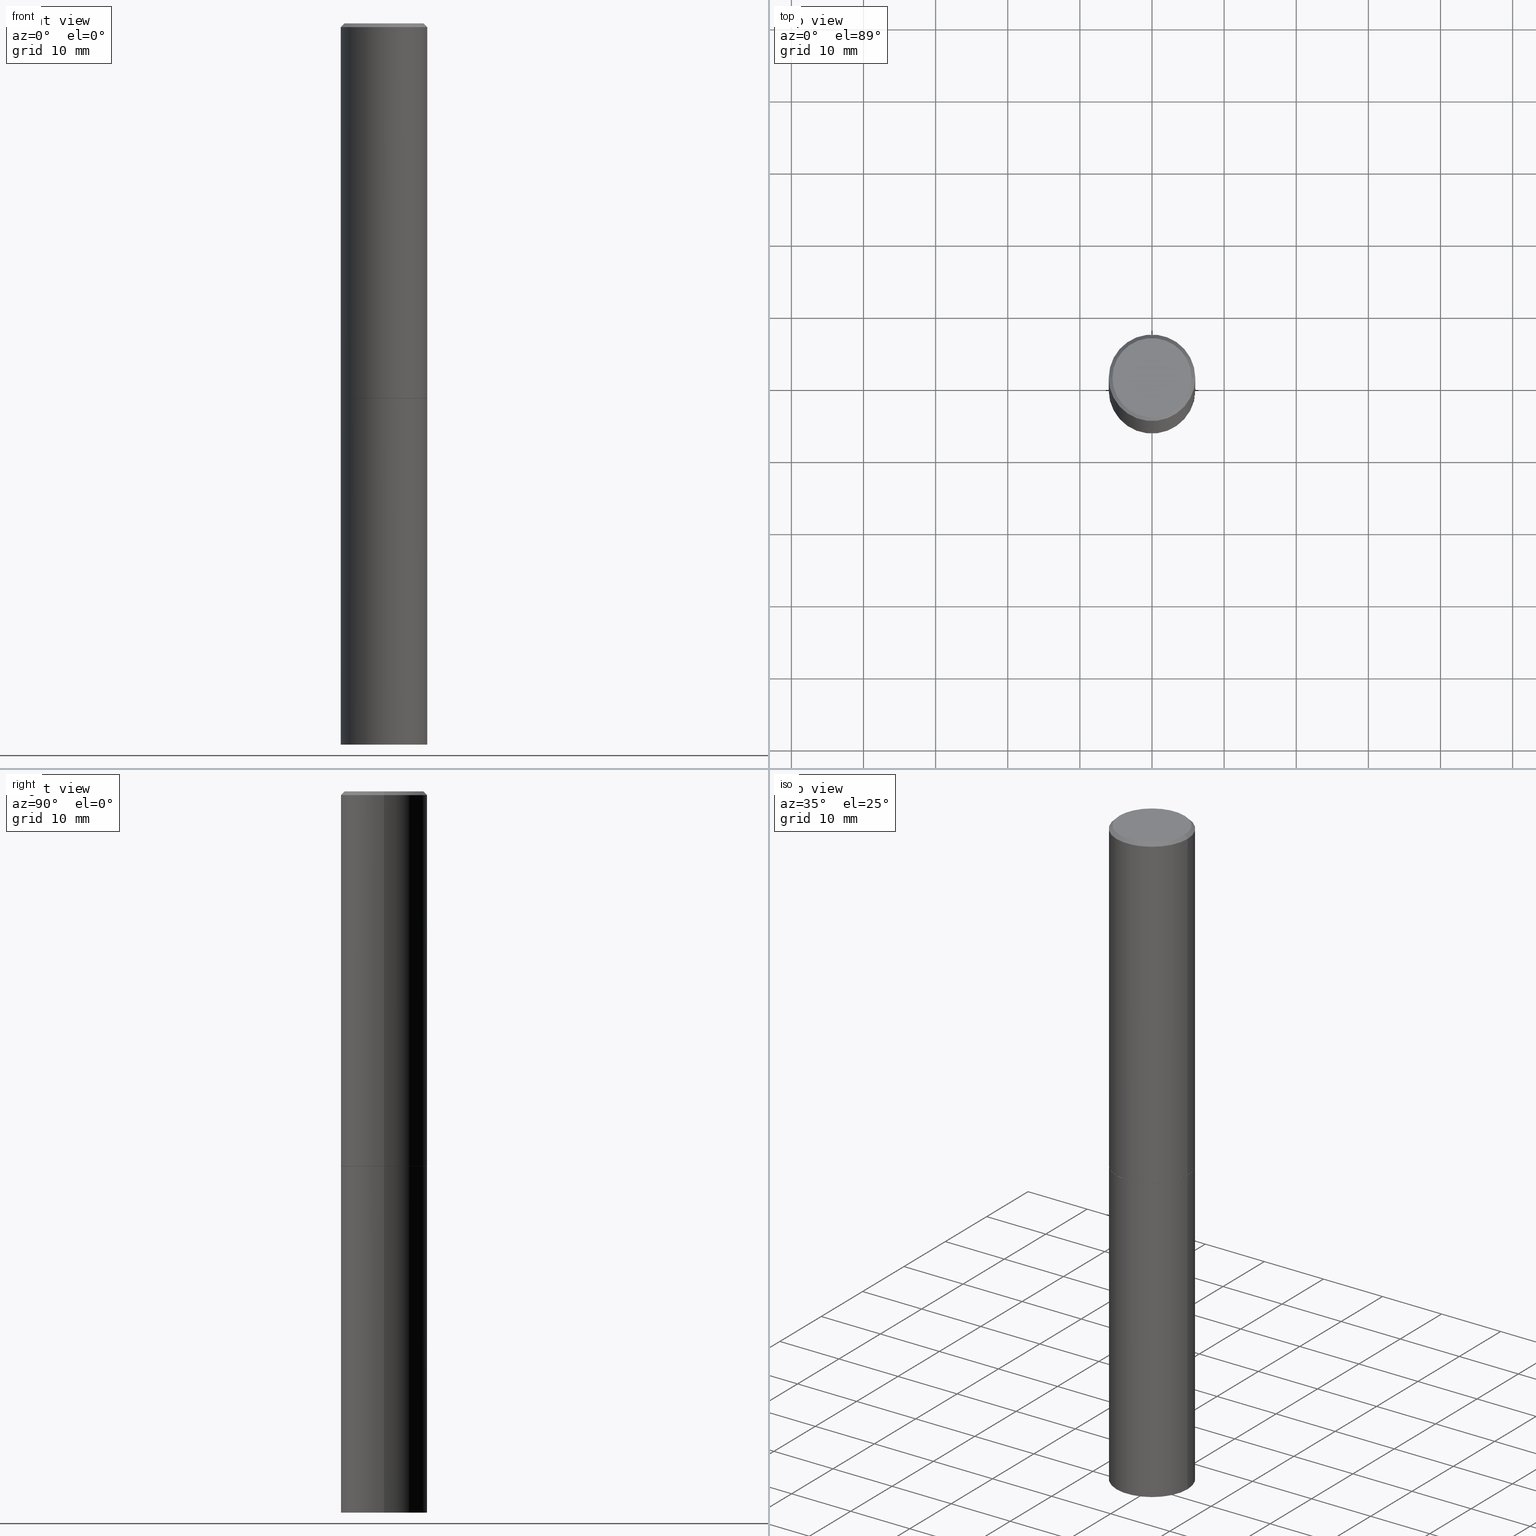
[diagram: canonical four-view strip — front | top / right | iso, engineering-drawing reading convention]
A machine part, canonical four-view strip (front | top / right | iso — engineering-drawing reading convention). The complete STEP part file that produces these views, byte-faithful:
ISO-10303-21;
HEADER;
FILE_DESCRIPTION (( 'STEP AP203' ),
    '1' );
FILE_NAME ('44897.STEP',
    '2024-02-28T08:09:14',
    ( '' ),
    ( '' ),
    'SwSTEP 2.0',
    'SolidWorks 2023',
    '' );
FILE_SCHEMA (( 'CONFIG_CONTROL_DESIGN' ));
ENDSEC;

DATA;
#1 = CARTESIAN_POINT ( 'NONE',  ( 0.000000000000000000, 0.000000000000000000, 0.000000000000000000 ) ) ;
#2 = CIRCLE ( 'NONE', #56, 0.2361999999999997157 ) ;
#3 = CC_DESIGN_SECURITY_CLASSIFICATION ( #134, ( #212 ) ) ;
#4 = PERSON_AND_ORGANIZATION ( #59, #199 ) ;
#5 = CARTESIAN_POINT ( 'NONE',  ( -1.043851414335219820E-46, 1.490343170380447200E-32, 4.268512490100411279E-18 ) ) ;
#6 = CALENDAR_DATE ( 2024, 28, 2 ) ;
#7 = DESIGN_CONTEXT ( 'detailed design', #343, 'design' ) ;
#8 = DIRECTION ( 'NONE',  ( 1.000000000000000000, -6.982962677686266711E-15, 4.876217060660162401E-29 ) ) ;
#9 = DATE_AND_TIME ( #318, #162 ) ;
#10 = AXIS2_PLACEMENT_3D ( 'NONE', #54, #229, #168 ) ;
#11 = ORIENTED_EDGE ( 'NONE', *, *, #263, .T. ) ;
#12 = VECTOR ( 'NONE', #251, 39.37007874015748143 ) ;
#13 = CC_DESIGN_APPROVAL ( #362, ( #40 ) ) ;
#14 = EDGE_LOOP ( 'NONE', ( #296, #83 ) ) ;
#15 = CC_DESIGN_DATE_AND_TIME_ASSIGNMENT ( #298, #128, ( #40 ) ) ;
#16 = CARTESIAN_POINT ( 'NONE',  ( -0.2351999999999999924, -5.471265628023711203E-15, -2.047200000000000575 ) ) ;
#17 = APPLICATION_CONTEXT ( 'configuration controlled 3d designs of mechanical parts and assemblies' ) ;
#18 = DIRECTION ( 'NONE',  ( -2.445468806185136877E-29, 3.491481338843145188E-15, 1.000000000000000000 ) ) ;
#19 = APPROVAL_PERSON_ORGANIZATION ( #37, #127, #183 ) ;
#20 = CARTESIAN_POINT ( 'NONE',  ( 0.2361999999999999933, -8.797136381349184727E-15, -2.047200000000000131 ) ) ;
#21 = ORIENTED_EDGE ( 'NONE', *, *, #268, .F. ) ;
#22 = CARTESIAN_POINT ( 'NONE',  ( 5.006363740022212241E-29, -7.147760596879688202E-15, -2.047200000000000131 ) ) ;
#23 = ORIENTED_EDGE ( 'NONE', *, *, #271, .T. ) ;
#24 = PLANE ( 'NONE',  #348 ) ;
#25 = VECTOR ( 'NONE', #352, 39.37007874015748143 ) ;
#26 = CARTESIAN_POINT ( 'NONE',  ( -0.2161999999999996980, 1.544631344304200000E-15, 4.268512490089730842E-18 ) ) ;
#27 =( LENGTH_UNIT ( ) NAMED_UNIT ( * ) SI_UNIT ( $, .METRE. ) );
#28 = VERTEX_POINT ( 'NONE', #319 ) ;
#29 = CARTESIAN_POINT ( 'NONE',  ( -0.2361999999999997157, 1.579546157692631255E-15, -0.02000000000000005940 ) ) ;
#30 = LOCAL_TIME ( 3, 9, 14.00000000000000000, #344 ) ;
#31 = FACE_OUTER_BOUND ( 'NONE', #172, .T. ) ;
#32 = DIRECTION ( 'NONE',  ( -2.445468806185136597E-29, 3.491481338843145583E-15, 1.000000000000000000 ) ) ;
#33 = ADVANCED_FACE ( 'NONE', ( #71 ), #156, .T. ) ;
#34 = AXIS2_PLACEMENT_3D ( 'NONE', #182, #81, #289 ) ;
#35 = VECTOR ( 'NONE', #147, 39.37007874015748143 ) ;
#36 = CARTESIAN_POINT ( 'NONE',  ( 0.000000000000000000, 0.000000000000000000, 0.000000000000000000 ) ) ;
#37 = PERSON_AND_ORGANIZATION ( #59, #199 ) ;
#38 = DIRECTION ( 'NONE',  ( -1.000000000000000000, 6.982962677686265922E-15, -4.876176775795935793E-29 ) ) ;
#39 = ORIENTED_EDGE ( 'NONE', *, *, #170, .F. ) ;
#40 = PRODUCT_DEFINITION ( 'UNKNOWN', '', #212, #7 ) ;
#41 = AXIS2_PLACEMENT_3D ( 'NONE', #36, #187, #351 ) ;
#42 = EDGE_LOOP ( 'NONE', ( #253, #122 ) ) ;
#43 = DIRECTION ( 'NONE',  ( -1.000000000000000000, 6.982962677686265922E-15, -4.876176775795935793E-29 ) ) ;
#44 = EDGE_LOOP ( 'NONE', ( #111, #290, #206, #270 ) ) ;
#45 = CARTESIAN_POINT ( 'NONE',  ( -1.043851414335219820E-46, 1.490343170380447200E-32, 4.268512490100411279E-18 ) ) ;
#46 = EDGE_CURVE ( 'NONE', #28, #204, #340, .T. ) ;
#47 = DIRECTION ( 'NONE',  ( -2.445468806185136597E-29, 3.491481338843145583E-15, 1.000000000000000000 ) ) ;
#48 = VERTEX_POINT ( 'NONE', #16 ) ;
#49 = CIRCLE ( 'NONE', #234, 0.2361999999999999933 ) ;
#50 = CYLINDRICAL_SURFACE ( 'NONE', #329, 0.2361999999999998545 ) ;
#51 = VERTEX_POINT ( 'NONE', #219 ) ;
#52 = EDGE_LOOP ( 'NONE', ( #98, #163, #358, #167 ) ) ;
#53 = CARTESIAN_POINT ( 'NONE',  ( 0.2361999999999997157, -1.690279253850496996E-15, -0.02000000000000005940 ) ) ;
#54 = CARTESIAN_POINT ( 'NONE',  ( 5.006363740022212801E-29, -7.147760596879689780E-15, -2.047200000000000575 ) ) ;
#55 = CC_DESIGN_PERSON_AND_ORGANIZATION_ASSIGNMENT ( #242, #123, ( #40 ) ) ;
#56 = AXIS2_PLACEMENT_3D ( 'NONE', #77, #222, #247 ) ;
#57 = APPROVAL_PERSON_ORGANIZATION ( #365, #362, #338 ) ;
#58 = DIRECTION ( 'NONE',  ( -2.445468806185136597E-29, 3.491481338843145583E-15, 1.000000000000000000 ) ) ;
#59 = PERSON ( 'UNSPECIFIED', 'UNSPECIFIED', 'UNSPECIFIED', ('UNSPECIFIED'), ('UNSPECIFIED'), ('UNSPECIFIED') ) ;
#60 = DIRECTION ( 'NONE',  ( 1.000000000000000000, -6.982962677686266711E-15, 4.876176775795935793E-29 ) ) ;
#61 = DIMENSIONAL_EXPONENTS ( 1.000000000000000000, 0.000000000000000000, 0.000000000000000000, 0.000000000000000000, 0.000000000000000000, 0.000000000000000000, 0.000000000000000000 ) ;
#62 = APPROVAL_DATE_TIME ( #313, #362 ) ;
#63 = VECTOR ( 'NONE', #141, 39.37007874015748143 ) ;
#64 = DIRECTION ( 'NONE',  ( -2.445468806185136597E-29, 3.491481338843145583E-15, 1.000000000000000000 ) ) ;
#65 = DATE_AND_TIME ( #121, #336 ) ;
#66 = SHAPE_DEFINITION_REPRESENTATION ( #218, #361 ) ;
#67 = VECTOR ( 'NONE', #76, 39.37007874015748143 ) ;
#68 = CONICAL_SURFACE ( 'NONE', #341, 0.2351999999999999924, 0.7853981633972946241 ) ;
#69 = DIRECTION ( 'NONE',  ( 2.438088387897960049E-29, -3.491481338843145188E-15, -1.000000000000000000 ) ) ;
#70 = EDGE_CURVE ( 'NONE', #286, #195, #107, .T. ) ;
#71 = FACE_OUTER_BOUND ( 'NONE', #169, .T. ) ;
#72 = ORIENTED_EDGE ( 'NONE', *, *, #46, .F. ) ;
#73 = DIRECTION ( 'NONE',  ( 2.438088387897960049E-29, -3.491481338843145188E-15, -1.000000000000000000 ) ) ;
#74 = ORIENTED_EDGE ( 'NONE', *, *, #196, .F. ) ;
#75 = ADVANCED_FACE ( 'NONE', ( #320 ), #301, .F. ) ;
#76 = DIRECTION ( 'NONE',  ( 0.7071067811864388819, -2.468850131081119129E-15, 0.7071067811866561525 ) ) ;
#77 = CARTESIAN_POINT ( 'NONE',  ( 4.890937612370288047E-31, -6.982962677686311331E-17, -0.02000000000000005940 ) ) ;
#78 = CARTESIAN_POINT ( 'NONE',  ( 0.2351999999999999924, -8.790153418671498713E-15, -2.047200000000000575 ) ) ;
#79 = EDGE_LOOP ( 'NONE', ( #108, #207 ) ) ;
#80 = EDGE_CURVE ( 'NONE', #51, #238, #245, .T. ) ;
#81 = DIRECTION ( 'NONE',  ( -2.445468806185136597E-29, 3.491481338843145583E-15, 1.000000000000000000 ) ) ;
#82 = CYLINDRICAL_SURFACE ( 'NONE', #88, 0.2361999999999999933 ) ;
#83 = ORIENTED_EDGE ( 'NONE', *, *, #46, .T. ) ;
#84 = DIRECTION ( 'NONE',  ( -1.000000000000000000, 6.982962677686266711E-15, 0.000000000000000000 ) ) ;
#85 = COORDINATED_UNIVERSAL_TIME_OFFSET ( 5, 0, .BEHIND. ) ;
#86 = MANIFOLD_SOLID_BREP ( 'Body-Move/Copy2[2]', #125 ) ;
#87 = CARTESIAN_POINT ( 'NONE',  ( -0.2361999999999999933, 1.678301941865356591E-15, -1.161852468318208757E-29 ) ) ;
#88 = AXIS2_PLACEMENT_3D ( 'NONE', #356, #133, #303 ) ;
#89 = CIRCLE ( 'NONE', #145, 0.2361999999999999933 ) ;
#90 = PERSON_AND_ORGANIZATION_ROLE ( 'creator' ) ;
#91 = COORDINATED_UNIVERSAL_TIME_OFFSET ( 5, 0, .BEHIND. ) ;
#92 = PLANE ( 'NONE',  #306 ) ;
#93 = AXIS2_PLACEMENT_3D ( 'NONE', #246, #69, #38 ) ;
#94 = CONICAL_SURFACE ( 'NONE', #288, 0.2361999999999997157, 0.7853981633974473908 ) ;
#95 = ORIENTED_EDGE ( 'NONE', *, *, #80, .F. ) ;
#96 = EDGE_CURVE ( 'NONE', #51, #188, #49, .T. ) ;
#97 = CALENDAR_DATE ( 2024, 28, 2 ) ;
#98 = ORIENTED_EDGE ( 'NONE', *, *, #228, .F. ) ;
#99 = CARTESIAN_POINT ( 'NONE',  ( 9.627810689950883669E-29, -1.374596203102546341E-14, -3.937000000000000277 ) ) ;
#100 = AXIS2_PLACEMENT_3D ( 'NONE', #198, #308, #164 ) ;
#101 = EDGE_LOOP ( 'NONE', ( #23, #138, #221, #39 ) ) ;
#102 =( GEOMETRIC_REPRESENTATION_CONTEXT ( 3 ) GLOBAL_UNCERTAINTY_ASSIGNED_CONTEXT ( ( #252 ) ) GLOBAL_UNIT_ASSIGNED_CONTEXT ( ( #264, #233, #211 ) ) REPRESENTATION_CONTEXT ( 'NONE', 'WORKASPACE' ) );
#103 = FACE_OUTER_BOUND ( 'NONE', #152, .T. ) ;
#104 = PRODUCT ( '44897', '44897', '', ( #342 ) ) ;
#105 = DIRECTION ( 'NONE',  ( 1.000000000000000000, -6.982962677686266711E-15, 4.876176775795935793E-29 ) ) ;
#106 = DIRECTION ( 'NONE',  ( -2.445468806185136597E-29, 3.491481338843145583E-15, 1.000000000000000000 ) ) ;
#107 = CIRCLE ( 'NONE', #197, 0.2361999999999997157 ) ;
#108 = ORIENTED_EDGE ( 'NONE', *, *, #271, .F. ) ;
#109 = LINE ( 'NONE', #325, #175 ) ;
#110 = CARTESIAN_POINT ( 'NONE',  ( 9.627810689950883669E-29, -1.374596203102546341E-14, -3.937000000000000277 ) ) ;
#111 = ORIENTED_EDGE ( 'NONE', *, *, #326, .F. ) ;
#112 = ADVANCED_FACE ( 'NONE', ( #220 ), #92, .F. ) ;
#113 = CIRCLE ( 'NONE', #160, 0.2361999999999999933 ) ;
#114 = CC_DESIGN_APPROVAL ( #127, ( #212 ) ) ;
#115 = CARTESIAN_POINT ( 'NONE',  ( 4.890937612370288047E-31, -6.982962677686311331E-17, -0.02000000000000005940 ) ) ;
#116 = FACE_OUTER_BOUND ( 'NONE', #311, .T. ) ;
#117 = CARTESIAN_POINT ( 'NONE',  ( 5.006363740022212801E-29, -7.147760596879689780E-15, -2.047200000000000575 ) ) ;
#118 = AXIS2_PLACEMENT_3D ( 'NONE', #277, #73, #43 ) ;
#119 = AXIS2_PLACEMENT_3D ( 'NONE', #291, #295, #60 ) ;
#120 = DIRECTION ( 'NONE',  ( 1.000000000000000000, -6.982962677686265133E-15, 0.000000000000000000 ) ) ;
#121 = CALENDAR_DATE ( 2024, 28, 2 ) ;
#122 = ORIENTED_EDGE ( 'NONE', *, *, #210, .F. ) ;
#123 = PERSON_AND_ORGANIZATION_ROLE ( 'creator' ) ;
#124 = ORIENTED_EDGE ( 'NONE', *, *, #235, .T. ) ;
#125 = CLOSED_SHELL ( 'NONE', ( #232, #223, #274, #279, #292, #333, #208, #75 ) ) ;
#126 = VERTEX_POINT ( 'NONE', #158 ) ;
#127 = APPROVAL ( #190, 'UNSPECIFIED' ) ;
#128 = DATE_TIME_ROLE ( 'creation_date' ) ;
#129 = ORIENTED_EDGE ( 'NONE', *, *, #191, .T. ) ;
#130 = APPROVAL_STATUS ( 'not_yet_approved' ) ;
#131 = PLANE ( 'NONE',  #93 ) ;
#132 = CLOSED_SHELL ( 'NONE', ( #33, #137, #112, #259 ) ) ;
#133 = DIRECTION ( 'NONE',  ( -2.445468806185136597E-29, 3.491481338843145583E-15, 1.000000000000000000 ) ) ;
#134 = SECURITY_CLASSIFICATION ( '', '', #272 ) ;
#135 = CARTESIAN_POINT ( 'NONE',  ( -0.2361999999999999933, -8.768559372087217836E-15, -2.047200000000000131 ) ) ;
#136 = CARTESIAN_POINT ( 'NONE',  ( 5.006363740022212801E-29, -7.147760596879689780E-15, -2.047200000000000575 ) ) ;
#137 = ADVANCED_FACE ( 'NONE', ( #192 ), #131, .T. ) ;
#138 = ORIENTED_EDGE ( 'NONE', *, *, #228, .T. ) ;
#139 = CARTESIAN_POINT ( 'NONE',  ( -0.2361999999999999933, -8.768559372087217836E-15, -3.937000000000000277 ) ) ;
#140 = CONICAL_SURFACE ( 'NONE', #307, 0.2361999999999997157, 0.7853981633974473908 ) ;
#141 = DIRECTION ( 'NONE',  ( 0.7071067811865469066, -7.319954787623254468E-15, -0.7071067811865482389 ) ) ;
#142 = LENGTH_MEASURE_WITH_UNIT ( LENGTH_MEASURE( 0.02539999999999999897 ), #27 );
#143 = CC_DESIGN_PERSON_AND_ORGANIZATION_ASSIGNMENT ( #4, #90, ( #212 ) ) ;
#144 = ORIENTED_EDGE ( 'NONE', *, *, #305, .T. ) ;
#145 = AXIS2_PLACEMENT_3D ( 'NONE', #178, #64, #120 ) ;
#146 = EDGE_CURVE ( 'NONE', #48, #324, #276, .T. ) ;
#147 = DIRECTION ( 'NONE',  ( -2.445468806185136877E-29, 3.491481338843145188E-15, 1.000000000000000000 ) ) ;
#148 = CARTESIAN_POINT ( 'NONE',  ( 4.890937612370288047E-31, -6.982962677686311331E-17, -0.02000000000000005940 ) ) ;
#149 = COORDINATED_UNIVERSAL_TIME_OFFSET ( 5, 0, .BEHIND. ) ;
#150 = DIRECTION ( 'NONE',  ( 1.000000000000000000, -6.982962677686265133E-15, 0.000000000000000000 ) ) ;
#151 = COORDINATED_UNIVERSAL_TIME_OFFSET ( 5, 0, .BEHIND. ) ;
#152 = EDGE_LOOP ( 'NONE', ( #129, #184, #217, #21 ) ) ;
#153 = CC_DESIGN_PERSON_AND_ORGANIZATION_ASSIGNMENT ( #269, #186, ( #134 ) ) ;
#154 = VERTEX_POINT ( 'NONE', #161 ) ;
#155 = CIRCLE ( 'NONE', #100, 0.2351999999999999924 ) ;
#156 = CYLINDRICAL_SURFACE ( 'NONE', #41, 0.2361999999999999933 ) ;
#157 = EDGE_CURVE ( 'NONE', #126, #286, #109, .T. ) ;
#158 = CARTESIAN_POINT ( 'NONE',  ( -0.2362000000000000210, -1.928747429293494697E-15, -2.046200000000000241 ) ) ;
#159 = DIRECTION ( 'NONE',  ( 1.000000000000000000, -6.982962677686266711E-15, 4.876217060660162401E-29 ) ) ;
#160 = AXIS2_PLACEMENT_3D ( 'NONE', #22, #224, #360 ) ;
#161 = CARTESIAN_POINT ( 'NONE',  ( 0.2362000000000000210, -8.793644900010341720E-15, -2.046200000000000241 ) ) ;
#162 = LOCAL_TIME ( 3, 9, 14.00000000000000000, #149 ) ;
#163 = ORIENTED_EDGE ( 'NONE', *, *, #146, .T. ) ;
#164 = DIRECTION ( 'NONE',  ( 1.000000000000000000, -6.982962677686264344E-15, 0.000000000000000000 ) ) ;
#165 = ORIENTED_EDGE ( 'NONE', *, *, #196, .T. ) ;
#166 = LINE ( 'NONE', #194, #314 ) ;
#167 = ORIENTED_EDGE ( 'NONE', *, *, #283, .F. ) ;
#168 = DIRECTION ( 'NONE',  ( 1.000000000000000000, -6.982962677686264344E-15, 0.000000000000000000 ) ) ;
#169 = EDGE_LOOP ( 'NONE', ( #202, #354, #300, #95 ) ) ;
#170 = EDGE_CURVE ( 'NONE', #324, #154, #285, .T. ) ;
#171 = LOCAL_TIME ( 3, 9, 14.00000000000000000, #151 ) ;
#172 = EDGE_LOOP ( 'NONE', ( #273, #328, #165, #345 ) ) ;
#173 = PERSON_AND_ORGANIZATION ( #59, #199 ) ;
#174 = CONICAL_SURFACE ( 'NONE', #10, 0.2351999999999999924, 0.7853981633972946241 ) ;
#175 = VECTOR ( 'NONE', #18, 39.37007874015748143 ) ;
#176 = CIRCLE ( 'NONE', #230, 0.2362000000000000210 ) ;
#177 = EDGE_CURVE ( 'NONE', #204, #28, #189, .T. ) ;
#178 = CARTESIAN_POINT ( 'NONE',  ( 5.006363740022212241E-29, -7.147760596879688202E-15, -2.047200000000000131 ) ) ;
#179 = DIRECTION ( 'NONE',  ( 2.445468806185136597E-29, -3.491481338843145583E-15, -1.000000000000000000 ) ) ;
#180 = APPROVAL_DATE_TIME ( #65, #127 ) ;
#181 = APPROVAL_PERSON_ORGANIZATION ( #214, #203, #316 ) ;
#182 = CARTESIAN_POINT ( 'NONE',  ( 5.006363740022212801E-29, -7.147760596879689780E-15, -2.047200000000000575 ) ) ;
#183 = APPROVAL_ROLE ( '' ) ;
#184 = ORIENTED_EDGE ( 'NONE', *, *, #157, .T. ) ;
#185 = EDGE_CURVE ( 'NONE', #238, #243, #113, .T. ) ;
#186 = PERSON_AND_ORGANIZATION_ROLE ( 'classification_officer' ) ;
#187 = DIRECTION ( 'NONE',  ( -2.445468806185136597E-29, 3.491481338843145583E-15, 1.000000000000000000 ) ) ;
#188 = VERTEX_POINT ( 'NONE', #139 ) ;
#189 = CIRCLE ( 'NONE', #281, 0.2161999999999996980 ) ;
#190 = APPROVAL_STATUS ( 'not_yet_approved' ) ;
#191 = EDGE_CURVE ( 'NONE', #154, #126, #216, .T. ) ;
#192 = FACE_OUTER_BOUND ( 'NONE', #42, .T. ) ;
#193 = CARTESIAN_POINT ( 'NONE',  ( 4.890937612370288047E-31, -6.982962677686311331E-17, -0.02000000000000005940 ) ) ;
#194 = CARTESIAN_POINT ( 'NONE',  ( 0.2361999999999998545, -1.649375784469495145E-15, 1.151752954442999387E-29 ) ) ;
#195 = VERTEX_POINT ( 'NONE', #327 ) ;
#196 = EDGE_CURVE ( 'NONE', #204, #286, #256, .T. ) ;
#197 = AXIS2_PLACEMENT_3D ( 'NONE', #193, #347, #275 ) ;
#198 = CARTESIAN_POINT ( 'NONE',  ( 5.006363740022212801E-29, -7.147760596879689780E-15, -2.047200000000000575 ) ) ;
#199 = ORGANIZATION ( 'UNSPECIFIED', 'UNSPECIFIED', '' ) ;
#200 = DIRECTION ( 'NONE',  ( -2.445468806185136597E-29, 3.491481338843145583E-15, 1.000000000000000000 ) ) ;
#201 = DIRECTION ( 'NONE',  ( -2.445468806185136597E-29, 3.491481338843145583E-15, 1.000000000000000000 ) ) ;
#202 = ORIENTED_EDGE ( 'NONE', *, *, #96, .T. ) ;
#203 = APPROVAL ( #130, 'UNSPECIFIED' ) ;
#204 = VERTEX_POINT ( 'NONE', #26 ) ;
#205 = CYLINDRICAL_SURFACE ( 'NONE', #119, 0.2361999999999998545 ) ;
#206 = ORIENTED_EDGE ( 'NONE', *, *, #80, .T. ) ;
#207 = ORIENTED_EDGE ( 'NONE', *, *, #146, .F. ) ;
#208 = ADVANCED_FACE ( 'NONE', ( #334 ), #24, .F. ) ;
#209 = CALENDAR_DATE ( 2024, 28, 2 ) ;
#210 = EDGE_CURVE ( 'NONE', #188, #51, #322, .T. ) ;
#211 =( NAMED_UNIT ( * ) SI_UNIT ( $, .STERADIAN. ) SOLID_ANGLE_UNIT ( ) );
#212 = PRODUCT_DEFINITION_FORMATION_WITH_SPECIFIED_SOURCE ( 'ANY', '', #104, .NOT_KNOWN. ) ;
#213 = DATE_TIME_ROLE ( 'classification_date' ) ;
#214 = PERSON_AND_ORGANIZATION ( #59, #199 ) ;
#215 = CARTESIAN_POINT ( 'NONE',  ( 0.2361999999999999933, -1.649375784469496131E-15, 1.151752954443000088E-29 ) ) ;
#216 = CIRCLE ( 'NONE', #364, 0.2362000000000000210 ) ;
#217 = ORIENTED_EDGE ( 'NONE', *, *, #263, .F. ) ;
#218 = PRODUCT_DEFINITION_SHAPE ( 'NONE', 'NONE',  #40 ) ;
#219 = CARTESIAN_POINT ( 'NONE',  ( 0.2361999999999999933, -1.539533781549495994E-14, -3.937000000000000277 ) ) ;
#220 = FACE_OUTER_BOUND ( 'NONE', #302, .T. ) ;
#221 = ORIENTED_EDGE ( 'NONE', *, *, #191, .F. ) ;
#222 = DIRECTION ( 'NONE',  ( -2.445468806185136597E-29, 3.491481338843145583E-15, 1.000000000000000000 ) ) ;
#223 = ADVANCED_FACE ( 'NONE', ( #103 ), #50, .T. ) ;
#224 = DIRECTION ( 'NONE',  ( -2.445468806185136597E-29, 3.491481338843145583E-15, 1.000000000000000000 ) ) ;
#225 = DIRECTION ( 'NONE',  ( 1.000000000000000000, -6.982962677686268288E-15, 0.000000000000000000 ) ) ;
#226 = ORIENTED_EDGE ( 'NONE', *, *, #185, .T. ) ;
#227 = LINE ( 'NONE', #53, #63 ) ;
#228 = EDGE_CURVE ( 'NONE', #48, #126, #355, .T. ) ;
#229 = DIRECTION ( 'NONE',  ( -2.445468806185136597E-29, 3.491481338843145583E-15, 1.000000000000000000 ) ) ;
#230 = AXIS2_PLACEMENT_3D ( 'NONE', #257, #32, #294 ) ;
#231 = APPROVAL_STATUS ( 'not_yet_approved' ) ;
#232 = ADVANCED_FACE ( 'NONE', ( #357 ), #174, .T. ) ;
#233 =( NAMED_UNIT ( * ) PLANE_ANGLE_UNIT ( ) SI_UNIT ( $, .RADIAN. ) );
#234 = AXIS2_PLACEMENT_3D ( 'NONE', #99, #346, #150 ) ;
#235 = EDGE_CURVE ( 'NONE', #28, #195, #227, .T. ) ;
#236 = FACE_OUTER_BOUND ( 'NONE', #52, .T. ) ;
#237 = PERSON_AND_ORGANIZATION ( #59, #199 ) ;
#238 = VERTEX_POINT ( 'NONE', #20 ) ;
#239 = APPROVAL_DATE_TIME ( #244, #203 ) ;
#240 = DIRECTION ( 'NONE',  ( -2.445468806185136597E-29, 3.491481338843145583E-15, 1.000000000000000000 ) ) ;
#241 = CC_DESIGN_APPROVAL ( #203, ( #134 ) ) ;
#242 = PERSON_AND_ORGANIZATION ( #59, #199 ) ;
#243 = VERTEX_POINT ( 'NONE', #135 ) ;
#244 = DATE_AND_TIME ( #97, #171 ) ;
#245 = LINE ( 'NONE', #215, #25 ) ;
#246 = CARTESIAN_POINT ( 'NONE',  ( 1.649375784469592175E-15, 0.2361999999999862265, -3.937000000000001165 ) ) ;
#247 = DIRECTION ( 'NONE',  ( 1.000000000000000000, -6.982962677686266711E-15, 0.000000000000000000 ) ) ;
#248 = CC_DESIGN_PERSON_AND_ORGANIZATION_ASSIGNMENT ( #237, #350, ( #212 ) ) ;
#249 = CARTESIAN_POINT ( 'NONE',  ( -0.2351999999999999924, -5.476564082371934394E-15, -2.047200000000000575 ) ) ;
#250 = ORIENTED_EDGE ( 'NONE', *, *, #268, .T. ) ;
#251 = DIRECTION ( 'NONE',  ( -0.7071067811864388819, 7.493145998869961307E-15, 0.7071067811866561525 ) ) ;
#252 = UNCERTAINTY_MEASURE_WITH_UNIT (LENGTH_MEASURE( 1.000000000000000082E-05 ), #264, 'distance_accuracy_value', 'NONE');
#253 = ORIENTED_EDGE ( 'NONE', *, *, #96, .F. ) ;
#254 = DIRECTION ( 'NONE',  ( -2.438088387897960049E-29, 3.491481338843145188E-15, 1.000000000000000000 ) ) ;
#255 = CC_DESIGN_DATE_AND_TIME_ASSIGNMENT ( #9, #213, ( #134 ) ) ;
#256 = LINE ( 'NONE', #330, #261 ) ;
#257 = CARTESIAN_POINT ( 'NONE',  ( 5.003918271216026638E-29, -7.144269115540845195E-15, -2.046200000000000241 ) ) ;
#258 = ORIENTED_EDGE ( 'NONE', *, *, #157, .F. ) ;
#259 = ADVANCED_FACE ( 'NONE', ( #331 ), #82, .T. ) ;
#260 = DIRECTION ( 'NONE',  ( 1.000000000000000000, 0.000000000000000000, 0.000000000000000000 ) ) ;
#261 = VECTOR ( 'NONE', #282, 39.37007874015748143 ) ;
#262 = EDGE_LOOP ( 'NONE', ( #72, #124, #11, #74 ) ) ;
#263 = EDGE_CURVE ( 'NONE', #195, #286, #2, .T. ) ;
#264 =( CONVERSION_BASED_UNIT ( 'INCH', #142 ) LENGTH_UNIT ( ) NAMED_UNIT ( #61 ) );
#265 = LINE ( 'NONE', #87, #35 ) ;
#266 = AXIS2_PLACEMENT_3D ( 'NONE', #110, #200, #310 ) ;
#267 = LOCAL_TIME ( 3, 9, 14.00000000000000000, #85 ) ;
#268 = EDGE_CURVE ( 'NONE', #154, #195, #166, .T. ) ;
#269 = PERSON_AND_ORGANIZATION ( #59, #199 ) ;
#270 = ORIENTED_EDGE ( 'NONE', *, *, #305, .F. ) ;
#271 = EDGE_CURVE ( 'NONE', #324, #48, #155, .T. ) ;
#272 = SECURITY_CLASSIFICATION_LEVEL ( 'unclassified' ) ;
#273 = ORIENTED_EDGE ( 'NONE', *, *, #235, .F. ) ;
#274 = ADVANCED_FACE ( 'NONE', ( #284 ), #94, .T. ) ;
#275 = DIRECTION ( 'NONE',  ( 1.000000000000000000, -6.982962677686266711E-15, 0.000000000000000000 ) ) ;
#276 = CIRCLE ( 'NONE', #34, 0.2351999999999999924 ) ;
#277 = CARTESIAN_POINT ( 'NONE',  ( 1.509716530915768548E-15, 0.2161999999999996980, -7.527240092128368218E-16 ) ) ;
#278 = ORIENTED_EDGE ( 'NONE', *, *, #70, .F. ) ;
#279 = ADVANCED_FACE ( 'NONE', ( #31 ), #140, .T. ) ;
#280 = CARTESIAN_POINT ( 'NONE',  ( 5.003918271216026638E-29, -7.144269115540845195E-15, -2.046200000000000241 ) ) ;
#281 = AXIS2_PLACEMENT_3D ( 'NONE', #45, #201, #159 ) ;
#282 = DIRECTION ( 'NONE',  ( -0.7071067811865469066, 2.468850131082249961E-15, -0.7071067811865482389 ) ) ;
#283 = EDGE_CURVE ( 'NONE', #126, #154, #176, .T. ) ;
#284 = FACE_OUTER_BOUND ( 'NONE', #262, .T. ) ;
#285 = LINE ( 'NONE', #78, #67 ) ;
#286 = VERTEX_POINT ( 'NONE', #29 ) ;
#287 = AXIS2_PLACEMENT_3D ( 'NONE', #5, #240, #8 ) ;
#288 = AXIS2_PLACEMENT_3D ( 'NONE', #148, #297, #312 ) ;
#289 = DIRECTION ( 'NONE',  ( 1.000000000000000000, -6.982962677686264344E-15, 0.000000000000000000 ) ) ;
#290 = ORIENTED_EDGE ( 'NONE', *, *, #210, .T. ) ;
#291 = CARTESIAN_POINT ( 'NONE',  ( 0.000000000000000000, 0.000000000000000000, 0.000000000000000000 ) ) ;
#292 = ADVANCED_FACE ( 'NONE', ( #116 ), #205, .T. ) ;
#293 = APPLICATION_PROTOCOL_DEFINITION ( 'international standard', 'config_control_design', 1994, #343 ) ;
#294 = DIRECTION ( 'NONE',  ( 1.000000000000000000, -6.982962677686268288E-15, 0.000000000000000000 ) ) ;
#295 = DIRECTION ( 'NONE',  ( -2.445468806185136597E-29, 3.491481338843145583E-15, 1.000000000000000000 ) ) ;
#296 = ORIENTED_EDGE ( 'NONE', *, *, #177, .T. ) ;
#297 = DIRECTION ( 'NONE',  ( 2.445468806185136597E-29, -3.491481338843145583E-15, -1.000000000000000000 ) ) ;
#298 = DATE_AND_TIME ( #6, #30 ) ;
#299 = CARTESIAN_POINT ( 'NONE',  ( 1.649375784469545829E-15, 0.2361999999999928601, -2.047200000000001019 ) ) ;
#300 = ORIENTED_EDGE ( 'NONE', *, *, #185, .F. ) ;
#301 = PLANE ( 'NONE',  #118 ) ;
#302 = EDGE_LOOP ( 'NONE', ( #226, #144 ) ) ;
#303 = DIRECTION ( 'NONE',  ( 1.000000000000000000, -6.982962677686266711E-15, 4.876176775795936353E-29 ) ) ;
#304 = DIRECTION ( 'NONE',  ( -2.445468806185136877E-29, 3.491481338843145188E-15, 1.000000000000000000 ) ) ;
#305 = EDGE_CURVE ( 'NONE', #243, #238, #89, .T. ) ;
#306 = AXIS2_PLACEMENT_3D ( 'NONE', #299, #317, #321 ) ;
#307 = AXIS2_PLACEMENT_3D ( 'NONE', #115, #179, #84 ) ;
#308 = DIRECTION ( 'NONE',  ( -2.445468806185136597E-29, 3.491481338843145583E-15, 1.000000000000000000 ) ) ;
#309 = CARTESIAN_POINT ( 'NONE',  ( 0.000000000000000000, 0.000000000000000000, 0.000000000000000000 ) ) ;
#310 = DIRECTION ( 'NONE',  ( 1.000000000000000000, -6.982962677686265133E-15, 0.000000000000000000 ) ) ;
#311 = EDGE_LOOP ( 'NONE', ( #258, #335, #250, #278 ) ) ;
#312 = DIRECTION ( 'NONE',  ( -1.000000000000000000, 6.982962677686266711E-15, 0.000000000000000000 ) ) ;
#313 = DATE_AND_TIME ( #209, #267 ) ;
#314 = VECTOR ( 'NONE', #304, 39.37007874015748143 ) ;
#315 = DIRECTION ( 'NONE',  ( 0.000000000000000000, 0.000000000000000000, 1.000000000000000000 ) ) ;
#316 = APPROVAL_ROLE ( '' ) ;
#317 = DIRECTION ( 'NONE',  ( 2.438088387897960049E-29, -3.491481338843145188E-15, -1.000000000000000000 ) ) ;
#318 = CALENDAR_DATE ( 2024, 28, 2 ) ;
#319 = CARTESIAN_POINT ( 'NONE',  ( 0.2161999999999996980, -1.586759460484350016E-15, 4.268512490111238857E-18 ) ) ;
#320 = FACE_OUTER_BOUND ( 'NONE', #14, .T. ) ;
#321 = DIRECTION ( 'NONE',  ( -1.000000000000000000, 6.982962677686265922E-15, -4.876176775795935793E-29 ) ) ;
#322 = CIRCLE ( 'NONE', #266, 0.2361999999999999933 ) ;
#323 = CC_DESIGN_PERSON_AND_ORGANIZATION_ASSIGNMENT ( #173, #337, ( #104 ) ) ;
#324 = VERTEX_POINT ( 'NONE', #363 ) ;
#325 = CARTESIAN_POINT ( 'NONE',  ( -0.2361999999999998545, 1.678301941865355605E-15, -1.161852468318208056E-29 ) ) ;
#326 = EDGE_CURVE ( 'NONE', #188, #243, #265, .T. ) ;
#327 = CARTESIAN_POINT ( 'NONE',  ( 0.2361999999999997157, -1.690279253850496996E-15, -0.02000000000000005940 ) ) ;
#328 = ORIENTED_EDGE ( 'NONE', *, *, #177, .F. ) ;
#329 = AXIS2_PLACEMENT_3D ( 'NONE', #309, #47, #105 ) ;
#330 = CARTESIAN_POINT ( 'NONE',  ( -0.2361999999999997157, 1.579546157692631255E-15, -0.02000000000000005940 ) ) ;
#331 = FACE_OUTER_BOUND ( 'NONE', #44, .T. ) ;
#332 = MANIFOLD_SOLID_BREP ( 'Body-Move/Copy2[1]', #132 ) ;
#333 = ADVANCED_FACE ( 'NONE', ( #236 ), #68, .T. ) ;
#334 = FACE_OUTER_BOUND ( 'NONE', #79, .T. ) ;
#335 = ORIENTED_EDGE ( 'NONE', *, *, #283, .T. ) ;
#336 = LOCAL_TIME ( 3, 9, 14.00000000000000000, #91 ) ;
#337 = PERSON_AND_ORGANIZATION_ROLE ( 'design_owner' ) ;
#338 = APPROVAL_ROLE ( '' ) ;
#339 = APPLICATION_PROTOCOL_DEFINITION ( 'international standard', 'config_control_design', 1994, #17 ) ;
#340 = CIRCLE ( 'NONE', #287, 0.2161999999999996980 ) ;
#341 = AXIS2_PLACEMENT_3D ( 'NONE', #117, #58, #366 ) ;
#342 = MECHANICAL_CONTEXT ( 'NONE', #17, 'mechanical' ) ;
#343 = APPLICATION_CONTEXT ( 'configuration controlled 3d designs of mechanical parts and assemblies' ) ;
#344 = COORDINATED_UNIVERSAL_TIME_OFFSET ( 5, 0, .BEHIND. ) ;
#345 = ORIENTED_EDGE ( 'NONE', *, *, #70, .T. ) ;
#346 = DIRECTION ( 'NONE',  ( -2.445468806185136597E-29, 3.491481338843145583E-15, 1.000000000000000000 ) ) ;
#347 = DIRECTION ( 'NONE',  ( -2.445468806185136597E-29, 3.491481338843145583E-15, 1.000000000000000000 ) ) ;
#348 = AXIS2_PLACEMENT_3D ( 'NONE', #136, #254, #359 ) ;
#349 = AXIS2_PLACEMENT_3D ( 'NONE', #1, #315, #260 ) ;
#350 = PERSON_AND_ORGANIZATION_ROLE ( 'design_supplier' ) ;
#351 = DIRECTION ( 'NONE',  ( 1.000000000000000000, -6.982962677686266711E-15, 4.876176775795936353E-29 ) ) ;
#352 = DIRECTION ( 'NONE',  ( -2.445468806185136877E-29, 3.491481338843145188E-15, 1.000000000000000000 ) ) ;
#353 = PRODUCT_RELATED_PRODUCT_CATEGORY ( 'detail', '', ( #104 ) ) ;
#354 = ORIENTED_EDGE ( 'NONE', *, *, #326, .T. ) ;
#355 = LINE ( 'NONE', #249, #12 ) ;
#356 = CARTESIAN_POINT ( 'NONE',  ( 0.000000000000000000, 0.000000000000000000, 0.000000000000000000 ) ) ;
#357 = FACE_OUTER_BOUND ( 'NONE', #101, .T. ) ;
#358 = ORIENTED_EDGE ( 'NONE', *, *, #170, .T. ) ;
#359 = DIRECTION ( 'NONE',  ( 1.000000000000000000, -6.982962677686265922E-15, 4.876176775795935793E-29 ) ) ;
#360 = DIRECTION ( 'NONE',  ( 1.000000000000000000, -6.982962677686265133E-15, 0.000000000000000000 ) ) ;
#361 = ADVANCED_BREP_SHAPE_REPRESENTATION ( '44897', ( #332, #86, #349 ), #102 ) ;
#362 = APPROVAL ( #231, 'UNSPECIFIED' ) ;
#363 = CARTESIAN_POINT ( 'NONE',  ( 0.2351999999999999924, -8.790153418671498713E-15, -2.047200000000000575 ) ) ;
#364 = AXIS2_PLACEMENT_3D ( 'NONE', #280, #106, #225 ) ;
#365 = PERSON_AND_ORGANIZATION ( #59, #199 ) ;
#366 = DIRECTION ( 'NONE',  ( 1.000000000000000000, -6.982962677686264344E-15, 0.000000000000000000 ) ) ;
ENDSEC;
END-ISO-10303-21;
